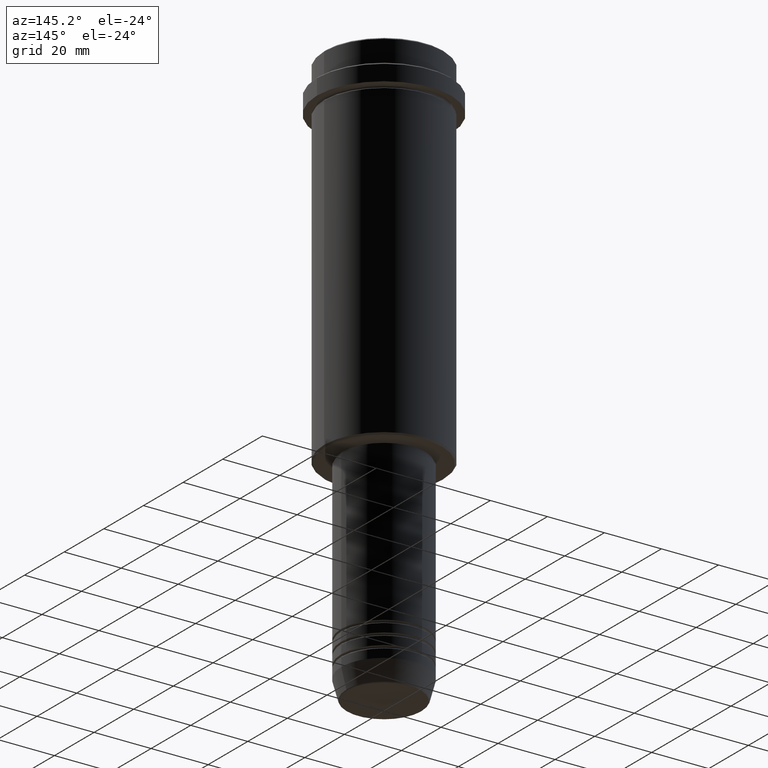
[diagram: clean part render]
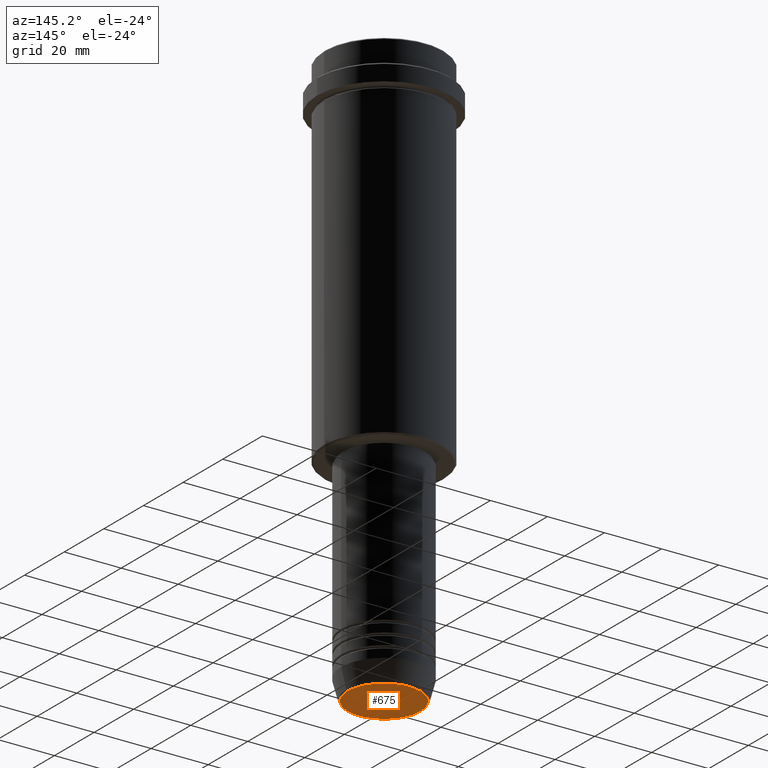
[diagram: same view with one face highlighted and labeled with its STEP entity id]
A machine part, auxiliary view. The second image highlights one B-rep face of the part: STEP entity #675.
In plain terms, the highlighted planar face has unit normal (0, -0, 1).
Its self-contained STEP definition (entity closure, byte-faithful):
#16 = CARTESIAN_POINT ( 'NONE',  ( 0.000000000000000000, 0.000000000000000000, -200.0000000000000000 ) ) ;
#23 = DIRECTION ( 'NONE',  ( 1.000000000000000000, 0.000000000000000000, 0.000000000000000000 ) ) ;
#43 = VERTEX_POINT ( 'NONE', #815 ) ;
#122 = EDGE_CURVE ( 'NONE', #1215, #43, #337, .T. ) ;
#144 = DIRECTION ( 'NONE',  ( 0.000000000000000000, 0.000000000000000000, -1.000000000000000000 ) ) ;
#192 = CARTESIAN_POINT ( 'NONE',  ( 0.000000000000000000, 0.000000000000000000, -200.0000000000000000 ) ) ;
#337 = CIRCLE ( 'NONE', #525, 12.74069215899265828 ) ;
#393 = DIRECTION ( 'NONE',  ( 1.000000000000000000, 0.000000000000000000, 0.000000000000000000 ) ) ;
#406 = AXIS2_PLACEMENT_3D ( 'NONE', #16, #144, #23 ) ;
#503 = FACE_OUTER_BOUND ( 'NONE', #1079, .T. ) ;
#514 = ORIENTED_EDGE ( 'NONE', *, *, #886, .T. ) ;
#525 = AXIS2_PLACEMENT_3D ( 'NONE', #1276, #1049, #749 ) ;
#612 = AXIS2_PLACEMENT_3D ( 'NONE', #192, #1367, #393 ) ;
#628 = ORIENTED_EDGE ( 'NONE', *, *, #122, .T. ) ;
#675 = ADVANCED_FACE ( 'NONE', ( #503 ), #1047, .F. ) ;
#749 = DIRECTION ( 'NONE',  ( 1.000000000000000000, 0.000000000000000000, 0.000000000000000000 ) ) ;
#815 = CARTESIAN_POINT ( 'NONE',  ( 12.74069215899265828, 0.000000000000000000, -200.0000000000000000 ) ) ;
#886 = EDGE_CURVE ( 'NONE', #43, #1215, #1114, .T. ) ;
#1047 = PLANE ( 'NONE',  #612 ) ;
#1049 = DIRECTION ( 'NONE',  ( 0.000000000000000000, 0.000000000000000000, -1.000000000000000000 ) ) ;
#1079 = EDGE_LOOP ( 'NONE', ( #514, #628 ) ) ;
#1114 = CIRCLE ( 'NONE', #406, 12.74069215899265828 ) ;
#1215 = VERTEX_POINT ( 'NONE', #1320 ) ;
#1276 = CARTESIAN_POINT ( 'NONE',  ( 0.000000000000000000, 0.000000000000000000, -200.0000000000000000 ) ) ;
#1320 = CARTESIAN_POINT ( 'NONE',  ( -12.74069215899265828, 1.589857736427681035E-15, -200.0000000000000000 ) ) ;
#1367 = DIRECTION ( 'NONE',  ( 0.000000000000000000, -0.000000000000000000, 1.000000000000000000 ) ) ;